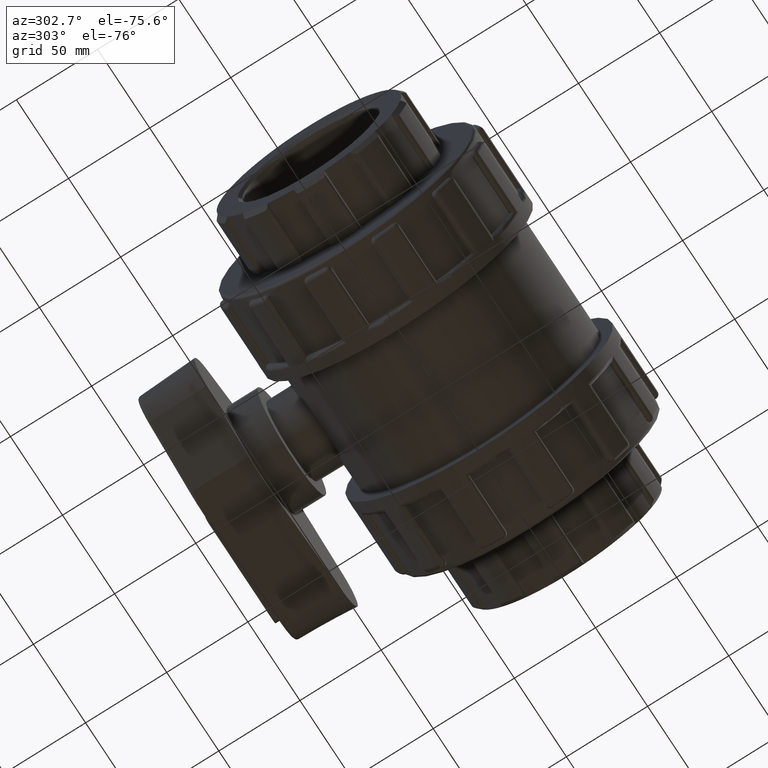
[diagram: clean part render]
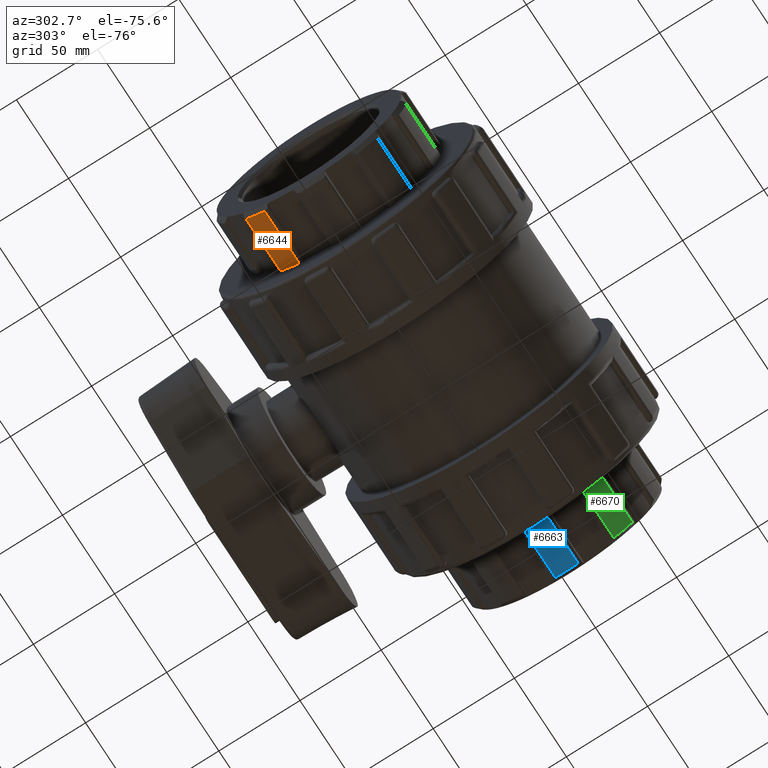
[diagram: same view with three faces highlighted in distinct colors, each labeled with its STEP entity id]
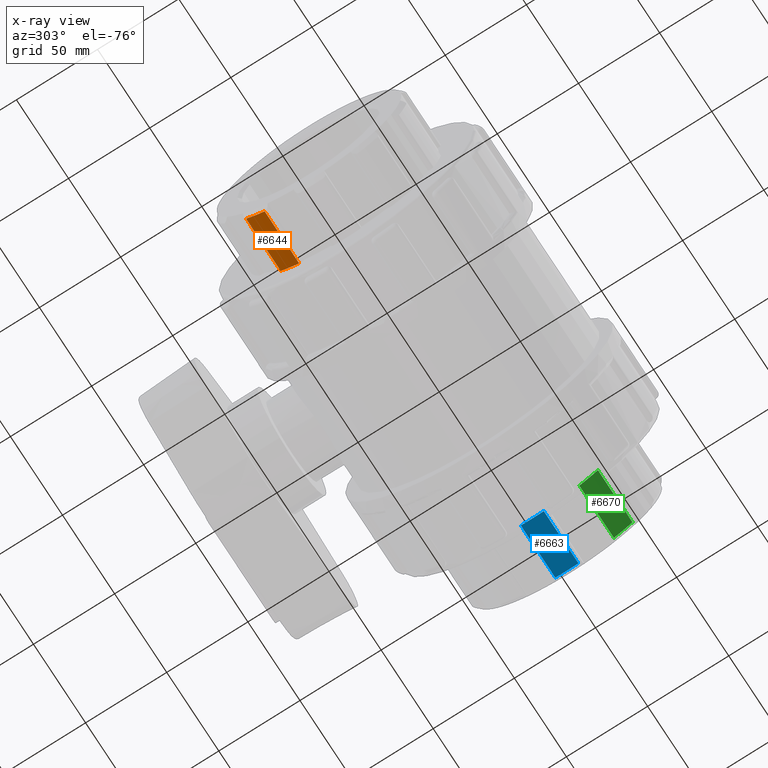
[diagram: x-ray of the same camera — body ghosted, the three highlighted faces saturated]
A machine part, auxiliary view with three faces highlighted in distinct colors.
The next image is the same camera in x-ray (body ghosted, the three faces saturated) — at least one of them is partly hidden behind the body in this view.
Their STEP definitions:

[orange] entity #6644 — the highlighted cylindrical surface (partial cylindrical patch) has radius 59.4482 mm, axis along (1, 0, 0).
#447=FACE_OUTER_BOUND('',#885,.T.);
#885=EDGE_LOOP('',(#4438,#4439,#4440,#4441));
#1342=LINE('',#10431,#1738);
#1344=LINE('',#10466,#1740);
#1738=VECTOR('',#8144,33.15222);
#1740=VECTOR('',#8156,33.15222);
#2134=CIRCLE('',#7108,59.4482);
#2136=CIRCLE('',#7111,59.4482);
#2661=VERTEX_POINT('',#10428);
#2662=VERTEX_POINT('',#10430);
#2664=VERTEX_POINT('',#10447);
#2666=VERTEX_POINT('',#10464);
#3325=EDGE_CURVE('',#2661,#2662,#1342,.T.);
#3328=EDGE_CURVE('',#2662,#2664,#2134,.T.);
#3331=EDGE_CURVE('',#2666,#2661,#2136,.T.);
#3332=EDGE_CURVE('',#2664,#2666,#1344,.T.);
#4438=ORIENTED_EDGE('',*,*,#3325,.F.);
#4439=ORIENTED_EDGE('',*,*,#3331,.F.);
#4440=ORIENTED_EDGE('',*,*,#3332,.F.);
#4441=ORIENTED_EDGE('',*,*,#3328,.F.);
#6433=CYLINDRICAL_SURFACE('',#7110,59.4482);
#6644=ADVANCED_FACE('',(#447),#6433,.T.);
#7108=AXIS2_PLACEMENT_3D('',#10448,#8148,#8149);
#7110=AXIS2_PLACEMENT_3D('',#10463,#8152,#8153);
#7111=AXIS2_PLACEMENT_3D('',#10465,#8154,#8155);
#8144=DIRECTION('',(-1.,0.,0.));
#8148=DIRECTION('center_axis',(-1.,0.,0.));
#8149=DIRECTION('ref_axis',(0.,-1.,0.));
#8152=DIRECTION('center_axis',(1.,0.,0.));
#8153=DIRECTION('ref_axis',(0.,1.,0.));
#8154=DIRECTION('center_axis',(1.,0.,0.));
#8155=DIRECTION('ref_axis',(0.,0.,-1.));
#8156=DIRECTION('',(1.,0.,0.));
#10428=CARTESIAN_POINT('',(-89.3,40.430084445952,-43.5832164362979));
#10430=CARTESIAN_POINT('',(-122.45222,40.430084445952,-43.5832164362979));
#10431=CARTESIAN_POINT('',(-125.,40.430084445952,-43.5832164362979));
#10447=CARTESIAN_POINT('',(-122.45222,28.9565188150297,-51.9192498150236));
#10448=CARTESIAN_POINT('Origin',(-122.45222,0.,0.));
#10463=CARTESIAN_POINT('Origin',(-107.15,0.,0.));
#10464=CARTESIAN_POINT('',(-89.3,28.9565188150297,-51.9192498150236));
#10465=CARTESIAN_POINT('Origin',(-89.3,0.,0.));
#10466=CARTESIAN_POINT('',(-125.,28.9565188150297,-51.9192498150236));

[blue] entity #6663 — the highlighted cylindrical surface (partial cylindrical patch) has radius 59.4482 mm, axis along (1, 0, 0).
#466=FACE_OUTER_BOUND('',#904,.T.);
#904=EDGE_LOOP('',(#4514,#4515,#4516,#4517));
#1356=LINE('',#10611,#1752);
#1366=LINE('',#10708,#1762);
#1752=VECTOR('',#8212,33.15222);
#1762=VECTOR('',#8260,33.15222);
#2160=CIRCLE('',#7154,59.4482);
#2161=CIRCLE('',#7155,59.4482);
#2692=VERTEX_POINT('',#10597);
#2693=VERTEX_POINT('',#10610);
#2712=VERTEX_POINT('',#10705);
#2713=VERTEX_POINT('',#10707);
#3363=EDGE_CURVE('',#2692,#2693,#1356,.T.);
#3388=EDGE_CURVE('',#2712,#2713,#1366,.T.);
#3391=EDGE_CURVE('',#2713,#2692,#2160,.T.);
#3392=EDGE_CURVE('',#2712,#2693,#2161,.T.);
#4514=ORIENTED_EDGE('',*,*,#3363,.F.);
#4515=ORIENTED_EDGE('',*,*,#3391,.F.);
#4516=ORIENTED_EDGE('',*,*,#3388,.F.);
#4517=ORIENTED_EDGE('',*,*,#3392,.T.);
#6449=CYLINDRICAL_SURFACE('',#7153,59.4482);
#6663=ADVANCED_FACE('',(#466),#6449,.T.);
#7153=AXIS2_PLACEMENT_3D('',#10723,#8262,#8263);
#7154=AXIS2_PLACEMENT_3D('',#10724,#8264,#8265);
#7155=AXIS2_PLACEMENT_3D('',#10725,#8266,#8267);
#8212=DIRECTION('',(-1.,0.,0.));
#8260=DIRECTION('',(1.,0.,0.));
#8262=DIRECTION('center_axis',(1.,0.,0.));
#8263=DIRECTION('ref_axis',(0.,1.,0.));
#8264=DIRECTION('center_axis',(1.,0.,0.));
#8265=DIRECTION('ref_axis',(0.,-1.,0.));
#8266=DIRECTION('center_axis',(1.,0.,0.));
#8267=DIRECTION('ref_axis',(0.,0.,-1.));
#10597=CARTESIAN_POINT('',(122.45222,7.09105353206259,-59.0237701527564));
#10610=CARTESIAN_POINT('',(89.3,7.09105353206259,-59.0237701527564));
#10611=CARTESIAN_POINT('',(125.,7.0910535320626,-59.0237701527565));
#10705=CARTESIAN_POINT('',(89.3,-7.09105353206259,-59.0237701527564));
#10707=CARTESIAN_POINT('',(122.45222,-7.09105353206259,-59.0237701527564));
#10708=CARTESIAN_POINT('',(125.,-7.09105353206259,-59.0237701527565));
#10723=CARTESIAN_POINT('Origin',(107.15,0.,0.));
#10724=CARTESIAN_POINT('Origin',(122.45222,0.,0.));
#10725=CARTESIAN_POINT('Origin',(89.3,0.,0.));

[green] entity #6670 — the highlighted cylindrical surface (partial cylindrical patch) has radius 59.4482 mm, axis along (1, 0, 0).
#473=FACE_OUTER_BOUND('',#911,.T.);
#911=EDGE_LOOP('',(#4542,#4543,#4544,#4545));
#1364=LINE('',#10699,#1760);
#1374=LINE('',#10796,#1770);
#1760=VECTOR('',#8252,33.15222);
#1770=VECTOR('',#8300,33.15222);
#2169=CIRCLE('',#7170,59.4482);
#2170=CIRCLE('',#7171,59.4482);
#2708=VERTEX_POINT('',#10685);
#2709=VERTEX_POINT('',#10698);
#2728=VERTEX_POINT('',#10793);
#2729=VERTEX_POINT('',#10795);
#3384=EDGE_CURVE('',#2708,#2709,#1364,.T.);
#3409=EDGE_CURVE('',#2728,#2729,#1374,.T.);
#3412=EDGE_CURVE('',#2729,#2708,#2169,.T.);
#3413=EDGE_CURVE('',#2728,#2709,#2170,.T.);
#4542=ORIENTED_EDGE('',*,*,#3384,.F.);
#4543=ORIENTED_EDGE('',*,*,#3412,.F.);
#4544=ORIENTED_EDGE('',*,*,#3409,.F.);
#4545=ORIENTED_EDGE('',*,*,#3413,.T.);
#6455=CYLINDRICAL_SURFACE('',#7169,59.4482);
#6670=ADVANCED_FACE('',(#473),#6455,.T.);
#7169=AXIS2_PLACEMENT_3D('',#10811,#8302,#8303);
#7170=AXIS2_PLACEMENT_3D('',#10812,#8304,#8305);
#7171=AXIS2_PLACEMENT_3D('',#10813,#8306,#8307);
#8252=DIRECTION('',(-1.,0.,0.));
#8300=DIRECTION('',(1.,0.,0.));
#8302=DIRECTION('center_axis',(1.,0.,0.));
#8303=DIRECTION('ref_axis',(0.,1.,0.));
#8304=DIRECTION('center_axis',(1.,0.,0.));
#8305=DIRECTION('ref_axis',(0.,-1.,0.));
#8306=DIRECTION('center_axis',(1.,0.,0.));
#8307=DIRECTION('ref_axis',(0.,0.,-1.));
#10685=CARTESIAN_POINT('',(122.45222,-28.9565188150298,-51.9192498150236));
#10698=CARTESIAN_POINT('',(89.3,-28.9565188150298,-51.9192498150236));
#10699=CARTESIAN_POINT('',(125.,-28.9565188150297,-51.9192498150236));
#10793=CARTESIAN_POINT('',(89.3,-40.430084445952,-43.5832164362979));
#10795=CARTESIAN_POINT('',(122.45222,-40.430084445952,-43.5832164362979));
#10796=CARTESIAN_POINT('',(125.,-40.430084445952,-43.5832164362979));
#10811=CARTESIAN_POINT('Origin',(107.15,0.,0.));
#10812=CARTESIAN_POINT('Origin',(122.45222,0.,0.));
#10813=CARTESIAN_POINT('Origin',(89.3,0.,0.));